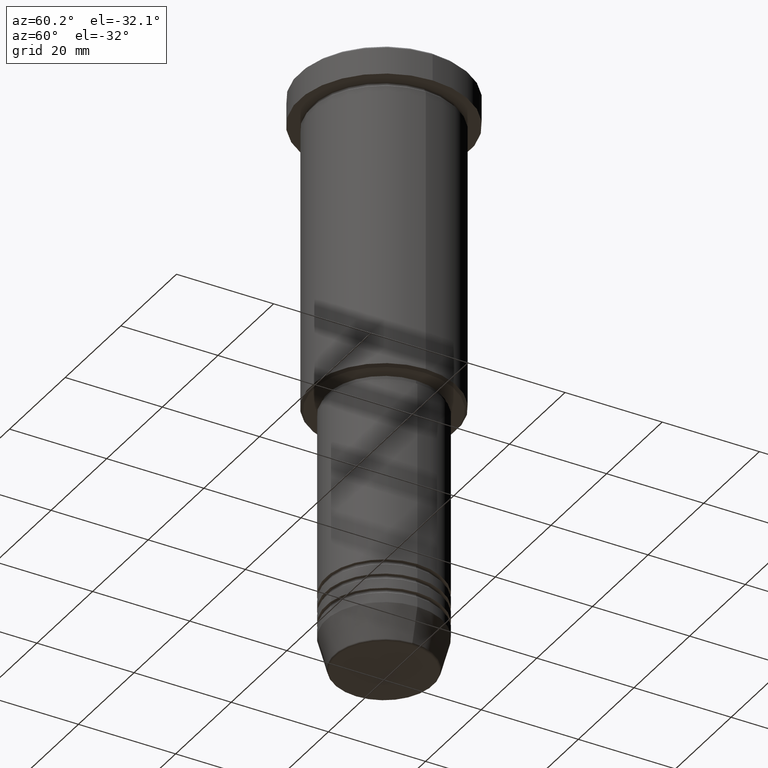
[diagram: clean part render]
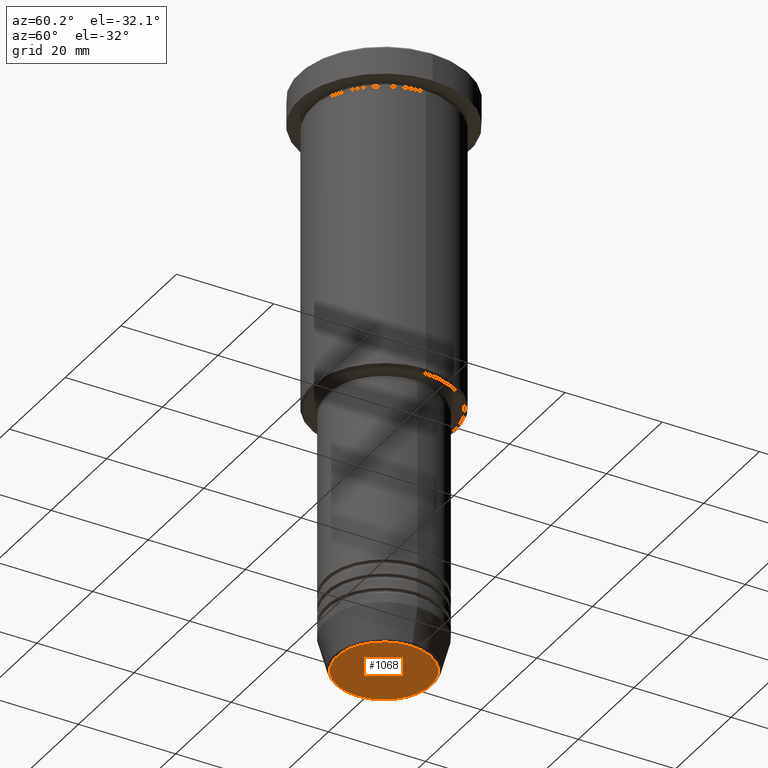
[diagram: same view with one face highlighted and labeled with its STEP entity id]
A machine part, auxiliary view. The second image highlights one B-rep face of the part: STEP entity #1068.
In plain terms, the highlighted planar face has unit normal (0, -0, 1).
Its self-contained STEP definition (entity closure, byte-faithful):
#58 = ORIENTED_EDGE ( 'NONE', *, *, #134, .T. ) ;
#83 = CIRCLE ( 'NONE', #768, 9.740692158992658278 ) ;
#100 = VERTEX_POINT ( 'NONE', #779 ) ;
#111 = EDGE_CURVE ( 'NONE', #100, #627, #83, .T. ) ;
#134 = EDGE_CURVE ( 'NONE', #627, #100, #863, .T. ) ;
#150 = FACE_OUTER_BOUND ( 'NONE', #957, .T. ) ;
#409 = CARTESIAN_POINT ( 'NONE',  ( 0.000000000000000000, 0.000000000000000000, -121.0000000000000142 ) ) ;
#467 = AXIS2_PLACEMENT_3D ( 'NONE', #865, #1150, #693 ) ;
#487 = AXIS2_PLACEMENT_3D ( 'NONE', #849, #1056, #758 ) ;
#514 = PLANE ( 'NONE',  #467 ) ;
#609 = CARTESIAN_POINT ( 'NONE',  ( 9.740692158992658278, 0.000000000000000000, -121.0000000000000142 ) ) ;
#627 = VERTEX_POINT ( 'NONE', #609 ) ;
#693 = DIRECTION ( 'NONE',  ( 1.000000000000000000, 0.000000000000000000, 0.000000000000000000 ) ) ;
#758 = DIRECTION ( 'NONE',  ( 1.000000000000000000, 0.000000000000000000, 0.000000000000000000 ) ) ;
#768 = AXIS2_PLACEMENT_3D ( 'NONE', #409, #1152, #774 ) ;
#774 = DIRECTION ( 'NONE',  ( 1.000000000000000000, 0.000000000000000000, 0.000000000000000000 ) ) ;
#779 = CARTESIAN_POINT ( 'NONE',  ( -9.740692158992658278, 1.222463696683474604E-15, -121.0000000000000142 ) ) ;
#849 = CARTESIAN_POINT ( 'NONE',  ( 0.000000000000000000, 0.000000000000000000, -121.0000000000000142 ) ) ;
#863 = CIRCLE ( 'NONE', #487, 9.740692158992658278 ) ;
#865 = CARTESIAN_POINT ( 'NONE',  ( 0.000000000000000000, 0.000000000000000000, -121.0000000000000142 ) ) ;
#957 = EDGE_LOOP ( 'NONE', ( #58, #1040 ) ) ;
#1040 = ORIENTED_EDGE ( 'NONE', *, *, #111, .T. ) ;
#1056 = DIRECTION ( 'NONE',  ( 0.000000000000000000, 0.000000000000000000, -1.000000000000000000 ) ) ;
#1068 = ADVANCED_FACE ( 'NONE', ( #150 ), #514, .F. ) ;
#1150 = DIRECTION ( 'NONE',  ( 0.000000000000000000, -0.000000000000000000, 1.000000000000000000 ) ) ;
#1152 = DIRECTION ( 'NONE',  ( 0.000000000000000000, 0.000000000000000000, -1.000000000000000000 ) ) ;